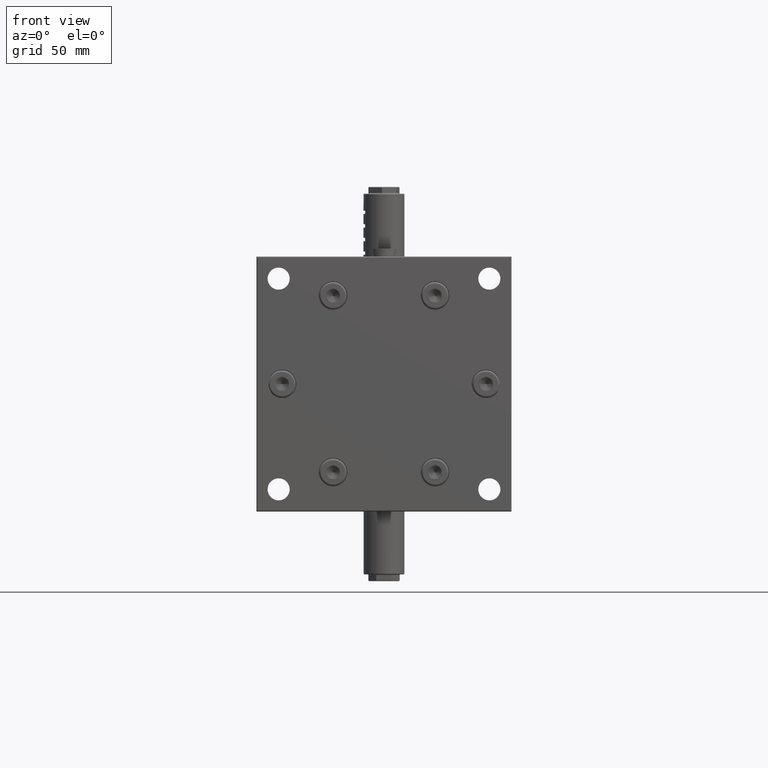
[diagram: clean part render]
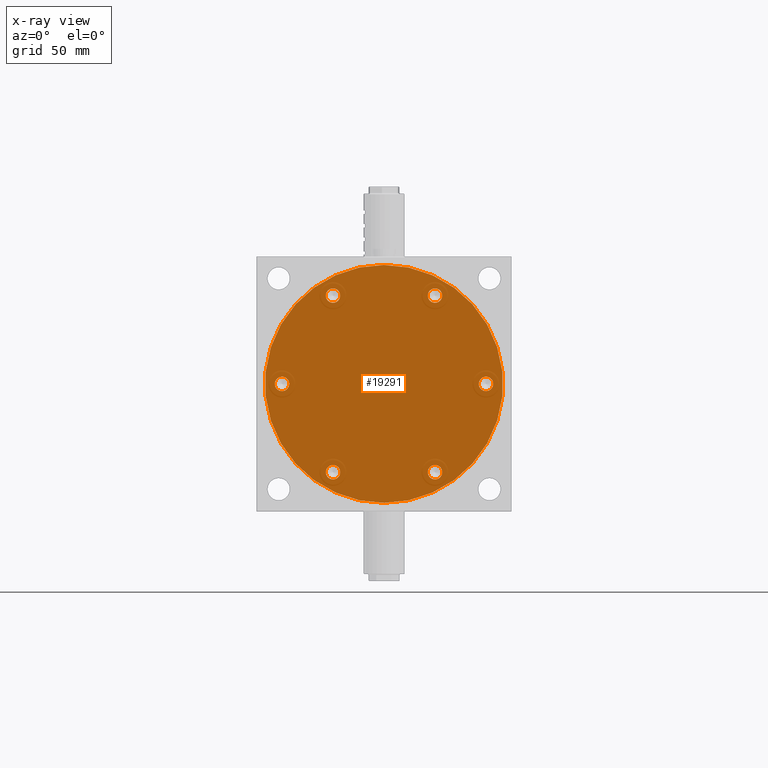
[diagram: x-ray — body ghosted, one internal face saturated and labeled with its STEP entity id]
A machine part, front view, then the same camera in x-ray: the body is ghosted and one INTERNAL B-rep face — a face not visible from any outside direction — is saturated and labeled: STEP entity #19291.
In plain terms, the highlighted planar face has unit normal (0, 1, 0).
Its self-contained STEP definition (entity closure, byte-faithful):
#264 = CARTESIAN_POINT ( 'NONE',  ( 60.00000000000000000, 310.0000000000000000, -4.250000000000000000 ) ) ;
#487 = DIRECTION ( 'NONE',  ( 0.0000000000000000000, 0.0000000000000000000, 1.000000000000000000 ) ) ;
#498 = EDGE_CURVE ( 'NONE', #26291, #34516, #12580, .T. ) ;
#1370 = EDGE_LOOP ( 'NONE', ( #5743, #25323 ) ) ;
#1411 = AXIS2_PLACEMENT_3D ( 'NONE', #41334, #21249, #20947 ) ;
#1434 = CIRCLE ( 'NONE', #24109, 70.00000000000000000 ) ;
#1503 = CARTESIAN_POINT ( 'NONE',  ( 30.00000000000000000, 310.0000000000000000, -47.71152422706629900 ) ) ;
#1547 = CIRCLE ( 'NONE', #33949, 4.249999999999996400 ) ;
#1964 = EDGE_CURVE ( 'NONE', #35588, #34383, #28973, .T. ) ;
#2272 = EDGE_LOOP ( 'NONE', ( #39514, #33018 ) ) ;
#2332 = DIRECTION ( 'NONE',  ( 0.0000000000000000000, 0.0000000000000000000, 1.000000000000000000 ) ) ;
#2371 = CARTESIAN_POINT ( 'NONE',  ( -30.00000000000000000, 310.0000000000000000, -47.71152422706629900 ) ) ;
#2447 = VERTEX_POINT ( 'NONE', #22483 ) ;
#2722 = DIRECTION ( 'NONE',  ( 0.0000000000000000000, 0.0000000000000000000, 1.000000000000000000 ) ) ;
#2865 = CARTESIAN_POINT ( 'NONE',  ( 0.0000000000000000000, 310.0000000000000000, 0.0000000000000000000 ) ) ;
#3125 = VERTEX_POINT ( 'NONE', #10687 ) ;
#3129 = ORIENTED_EDGE ( 'NONE', *, *, #32395, .F. ) ;
#3534 = ORIENTED_EDGE ( 'NONE', *, *, #28799, .F. ) ;
#4712 = VERTEX_POINT ( 'NONE', #8422 ) ;
#4930 = AXIS2_PLACEMENT_3D ( 'NONE', #29269, #43009, #6436 ) ;
#5570 = EDGE_LOOP ( 'NONE', ( #32735, #30900 ) ) ;
#5743 = ORIENTED_EDGE ( 'NONE', *, *, #11033, .F. ) ;
#5802 = DIRECTION ( 'NONE',  ( 0.0000000000000000000, 1.000000000000000000, 0.0000000000000000000 ) ) ;
#6116 = CARTESIAN_POINT ( 'NONE',  ( 30.00000000000000000, 310.0000000000000000, 56.21152422706629200 ) ) ;
#6378 = EDGE_LOOP ( 'NONE', ( #24806, #21898 ) ) ;
#6436 = DIRECTION ( 'NONE',  ( 0.0000000000000000000, 0.0000000000000000000, 1.000000000000000000 ) ) ;
#6525 = EDGE_CURVE ( 'NONE', #10558, #42319, #39149, .T. ) ;
#6609 = CARTESIAN_POINT ( 'NONE',  ( -30.00000000000000000, 310.0000000000000000, 51.96152422706629900 ) ) ;
#6961 = CIRCLE ( 'NONE', #1411, 70.00000000000000000 ) ;
#7321 = CIRCLE ( 'NONE', #42967, 4.249999999999996400 ) ;
#7984 = FACE_OUTER_BOUND ( 'NONE', #14158, .T. ) ;
#8157 = DIRECTION ( 'NONE',  ( -0.0000000000000000000, -1.000000000000000000, -0.0000000000000000000 ) ) ;
#8422 = CARTESIAN_POINT ( 'NONE',  ( 0.0000000000000000000, 310.0000000000000000, -70.00000000000000000 ) ) ;
#8695 = DIRECTION ( 'NONE',  ( 0.0000000000000000000, 1.000000000000000000, 0.0000000000000000000 ) ) ;
#8737 = DIRECTION ( 'NONE',  ( 0.0000000000000000000, 1.000000000000000000, 0.0000000000000000000 ) ) ;
#9410 = DIRECTION ( 'NONE',  ( 0.0000000000000000000, 1.000000000000000000, 0.0000000000000000000 ) ) ;
#9552 = AXIS2_PLACEMENT_3D ( 'NONE', #41103, #41993, #35408 ) ;
#10052 = FACE_BOUND ( 'NONE', #6378, .T. ) ;
#10558 = VERTEX_POINT ( 'NONE', #264 ) ;
#10593 = CARTESIAN_POINT ( 'NONE',  ( -60.00000000000000000, 310.0000000000000000, 4.250000000000003600 ) ) ;
#10687 = CARTESIAN_POINT ( 'NONE',  ( -60.00000000000000000, 310.0000000000000000, -4.249999999999996400 ) ) ;
#11033 = EDGE_CURVE ( 'NONE', #2447, #41405, #31587, .T. ) ;
#11088 = VERTEX_POINT ( 'NONE', #33697 ) ;
#12073 = EDGE_LOOP ( 'NONE', ( #37511, #12419 ) ) ;
#12250 = DIRECTION ( 'NONE',  ( 0.0000000000000000000, 0.0000000000000000000, 1.000000000000000000 ) ) ;
#12401 = DIRECTION ( 'NONE',  ( 0.0000000000000000000, 0.0000000000000000000, 1.000000000000000000 ) ) ;
#12415 = CARTESIAN_POINT ( 'NONE',  ( -30.00000000000000000, 310.0000000000000000, 51.96152422706629900 ) ) ;
#12419 = ORIENTED_EDGE ( 'NONE', *, *, #39138, .F. ) ;
#12554 = DIRECTION ( 'NONE',  ( 0.0000000000000000000, 1.000000000000000000, 0.0000000000000000000 ) ) ;
#12580 = CIRCLE ( 'NONE', #28700, 2.000000000000000000 ) ;
#12939 = CARTESIAN_POINT ( 'NONE',  ( 60.00000000000000000, 310.0000000000000000, 0.0000000000000000000 ) ) ;
#13551 = CARTESIAN_POINT ( 'NONE',  ( 30.00000000000000000, 310.0000000000000000, 47.71152422706629900 ) ) ;
#13690 = DIRECTION ( 'NONE',  ( 0.0000000000000000000, 1.000000000000000000, 0.0000000000000000000 ) ) ;
#13878 = AXIS2_PLACEMENT_3D ( 'NONE', #37580, #27646, #17535 ) ;
#13927 = ORIENTED_EDGE ( 'NONE', *, *, #41584, .T. ) ;
#14158 = EDGE_LOOP ( 'NONE', ( #40265, #3129 ) ) ;
#14188 = EDGE_CURVE ( 'NONE', #20908, #20515, #40818, .T. ) ;
#14599 = CIRCLE ( 'NONE', #20686, 4.249999999999996400 ) ;
#15375 = CARTESIAN_POINT ( 'NONE',  ( 60.00000000000000000, 310.0000000000000000, 0.0000000000000000000 ) ) ;
#15447 = AXIS2_PLACEMENT_3D ( 'NONE', #2865, #9410, #42667 ) ;
#15561 = CARTESIAN_POINT ( 'NONE',  ( 0.0000000000000000000, 310.0000000000000000, 2.000000000000000000 ) ) ;
#15814 = VERTEX_POINT ( 'NONE', #20579 ) ;
#16007 = PLANE ( 'NONE',  #15447 ) ;
#16159 = CARTESIAN_POINT ( 'NONE',  ( 30.00000000000000000, 310.0000000000000000, -51.96152422706629900 ) ) ;
#16276 = CIRCLE ( 'NONE', #43311, 4.250000000000000000 ) ;
#17448 = CARTESIAN_POINT ( 'NONE',  ( 60.00000000000000000, 310.0000000000000000, 4.250000000000000000 ) ) ;
#17535 = DIRECTION ( 'NONE',  ( 0.0000000000000000000, 0.0000000000000000000, 1.000000000000000000 ) ) ;
#18968 = FACE_BOUND ( 'NONE', #1370, .T. ) ;
#19291 = ADVANCED_FACE ( 'NONE', ( #39939, #29483, #31054, #18968, #43083, #10052, #36801, #7984 ), #16007, .T. ) ;
#20515 = VERTEX_POINT ( 'NONE', #39840 ) ;
#20579 = CARTESIAN_POINT ( 'NONE',  ( 30.00000000000000000, 310.0000000000000000, -56.21152422706629200 ) ) ;
#20686 = AXIS2_PLACEMENT_3D ( 'NONE', #12415, #12554, #42426 ) ;
#20908 = VERTEX_POINT ( 'NONE', #2371 ) ;
#20947 = DIRECTION ( 'NONE',  ( 0.0000000000000000000, 0.0000000000000000000, -1.000000000000000000 ) ) ;
#21249 = DIRECTION ( 'NONE',  ( 0.0000000000000000000, -1.000000000000000000, 0.0000000000000000000 ) ) ;
#21898 = ORIENTED_EDGE ( 'NONE', *, *, #39570, .F. ) ;
#21976 = CARTESIAN_POINT ( 'NONE',  ( 0.0000000000000000000, 310.0000000000000000, 0.0000000000000000000 ) ) ;
#22032 = DIRECTION ( 'NONE',  ( 0.0000000000000000000, 1.000000000000000000, 0.0000000000000000000 ) ) ;
#22388 = DIRECTION ( 'NONE',  ( 0.0000000000000000000, -1.000000000000000000, 0.0000000000000000000 ) ) ;
#22483 = CARTESIAN_POINT ( 'NONE',  ( -30.00000000000000000, 310.0000000000000000, 56.21152422706629200 ) ) ;
#22714 = AXIS2_PLACEMENT_3D ( 'NONE', #42237, #8695, #42363 ) ;
#22747 = CIRCLE ( 'NONE', #26479, 4.249999999999996400 ) ;
#23768 = CARTESIAN_POINT ( 'NONE',  ( -30.00000000000000000, 310.0000000000000000, -51.96152422706629900 ) ) ;
#24109 = AXIS2_PLACEMENT_3D ( 'NONE', #21976, #22388, #25493 ) ;
#24211 = EDGE_CURVE ( 'NONE', #32153, #3125, #26172, .T. ) ;
#24508 = DIRECTION ( 'NONE',  ( 0.0000000000000000000, 0.0000000000000000000, 1.000000000000000000 ) ) ;
#24806 = ORIENTED_EDGE ( 'NONE', *, *, #14188, .F. ) ;
#24912 = EDGE_LOOP ( 'NONE', ( #3534, #40415 ) ) ;
#24927 = EDGE_LOOP ( 'NONE', ( #26082, #13927 ) ) ;
#25323 = ORIENTED_EDGE ( 'NONE', *, *, #25370, .F. ) ;
#25370 = EDGE_CURVE ( 'NONE', #41405, #2447, #14599, .T. ) ;
#25493 = DIRECTION ( 'NONE',  ( 0.0000000000000000000, 0.0000000000000000000, -1.000000000000000000 ) ) ;
#26082 = ORIENTED_EDGE ( 'NONE', *, *, #498, .T. ) ;
#26172 = CIRCLE ( 'NONE', #4930, 4.250000000000000000 ) ;
#26291 = VERTEX_POINT ( 'NONE', #15561 ) ;
#26479 = AXIS2_PLACEMENT_3D ( 'NONE', #28793, #8737, #2332 ) ;
#26773 = DIRECTION ( 'NONE',  ( 0.0000000000000000000, 1.000000000000000000, 0.0000000000000000000 ) ) ;
#27646 = DIRECTION ( 'NONE',  ( 0.0000000000000000000, 1.000000000000000000, 0.0000000000000000000 ) ) ;
#28700 = AXIS2_PLACEMENT_3D ( 'NONE', #29768, #33136, #2722 ) ;
#28793 = CARTESIAN_POINT ( 'NONE',  ( 30.00000000000000000, 310.0000000000000000, -51.96152422706629900 ) ) ;
#28799 = EDGE_CURVE ( 'NONE', #41135, #15814, #22747, .T. ) ;
#28973 = CIRCLE ( 'NONE', #13878, 4.249999999999996400 ) ;
#29207 = DIRECTION ( 'NONE',  ( 0.0000000000000000000, 0.0000000000000000000, 1.000000000000000000 ) ) ;
#29269 = CARTESIAN_POINT ( 'NONE',  ( -60.00000000000000000, 310.0000000000000000, 3.469446951953615000E-015 ) ) ;
#29483 = FACE_BOUND ( 'NONE', #5570, .T. ) ;
#29768 = CARTESIAN_POINT ( 'NONE',  ( 0.0000000000000000000, 310.0000000000000000, 0.0000000000000000000 ) ) ;
#30382 = EDGE_CURVE ( 'NONE', #4712, #11088, #6961, .T. ) ;
#30900 = ORIENTED_EDGE ( 'NONE', *, *, #6525, .F. ) ;
#31054 = FACE_BOUND ( 'NONE', #12073, .T. ) ;
#31587 = CIRCLE ( 'NONE', #42616, 4.249999999999996400 ) ;
#32153 = VERTEX_POINT ( 'NONE', #10593 ) ;
#32395 = EDGE_CURVE ( 'NONE', #11088, #4712, #1434, .T. ) ;
#32735 = ORIENTED_EDGE ( 'NONE', *, *, #35422, .F. ) ;
#33018 = ORIENTED_EDGE ( 'NONE', *, *, #33286, .F. ) ;
#33136 = DIRECTION ( 'NONE',  ( -0.0000000000000000000, -1.000000000000000000, -0.0000000000000000000 ) ) ;
#33286 = EDGE_CURVE ( 'NONE', #3125, #32153, #40090, .T. ) ;
#33697 = CARTESIAN_POINT ( 'NONE',  ( 8.572527594031473000E-015, 310.0000000000000000, 70.00000000000000000 ) ) ;
#33949 = AXIS2_PLACEMENT_3D ( 'NONE', #38484, #22032, #12401 ) ;
#34232 = CARTESIAN_POINT ( 'NONE',  ( 2.449293598294706400E-016, 310.0000000000000000, -2.000000000000000000 ) ) ;
#34383 = VERTEX_POINT ( 'NONE', #13551 ) ;
#34516 = VERTEX_POINT ( 'NONE', #34232 ) ;
#35408 = DIRECTION ( 'NONE',  ( 0.0000000000000000000, 0.0000000000000000000, 1.000000000000000000 ) ) ;
#35422 = EDGE_CURVE ( 'NONE', #42319, #10558, #16276, .T. ) ;
#35588 = VERTEX_POINT ( 'NONE', #6116 ) ;
#36801 = FACE_BOUND ( 'NONE', #24912, .T. ) ;
#36841 = DIRECTION ( 'NONE',  ( 0.0000000000000000000, 0.0000000000000000000, 1.000000000000000000 ) ) ;
#37407 = AXIS2_PLACEMENT_3D ( 'NONE', #23768, #13690, #36841 ) ;
#37511 = ORIENTED_EDGE ( 'NONE', *, *, #1964, .F. ) ;
#37580 = CARTESIAN_POINT ( 'NONE',  ( 30.00000000000000000, 310.0000000000000000, 51.96152422706629900 ) ) ;
#37943 = EDGE_CURVE ( 'NONE', #15814, #41135, #7321, .T. ) ;
#38484 = CARTESIAN_POINT ( 'NONE',  ( 30.00000000000000000, 310.0000000000000000, 51.96152422706629900 ) ) ;
#39138 = EDGE_CURVE ( 'NONE', #34383, #35588, #1547, .T. ) ;
#39149 = CIRCLE ( 'NONE', #41928, 4.250000000000000000 ) ;
#39514 = ORIENTED_EDGE ( 'NONE', *, *, #24211, .F. ) ;
#39570 = EDGE_CURVE ( 'NONE', #20515, #20908, #41858, .T. ) ;
#39840 = CARTESIAN_POINT ( 'NONE',  ( -30.00000000000000000, 310.0000000000000000, -56.21152422706629200 ) ) ;
#39933 = CARTESIAN_POINT ( 'NONE',  ( -30.00000000000000000, 310.0000000000000000, 47.71152422706629900 ) ) ;
#39939 = FACE_BOUND ( 'NONE', #24927, .T. ) ;
#40090 = CIRCLE ( 'NONE', #9552, 4.250000000000000000 ) ;
#40265 = ORIENTED_EDGE ( 'NONE', *, *, #30382, .F. ) ;
#40415 = ORIENTED_EDGE ( 'NONE', *, *, #37943, .F. ) ;
#40818 = CIRCLE ( 'NONE', #22714, 4.249999999999996400 ) ;
#41103 = CARTESIAN_POINT ( 'NONE',  ( -60.00000000000000000, 310.0000000000000000, 3.469446951953615000E-015 ) ) ;
#41135 = VERTEX_POINT ( 'NONE', #1503 ) ;
#41334 = CARTESIAN_POINT ( 'NONE',  ( 0.0000000000000000000, 310.0000000000000000, 0.0000000000000000000 ) ) ;
#41405 = VERTEX_POINT ( 'NONE', #39933 ) ;
#41584 = EDGE_CURVE ( 'NONE', #34516, #26291, #42194, .T. ) ;
#41701 = CARTESIAN_POINT ( 'NONE',  ( 0.0000000000000000000, 310.0000000000000000, 0.0000000000000000000 ) ) ;
#41858 = CIRCLE ( 'NONE', #37407, 4.249999999999996400 ) ;
#41883 = DIRECTION ( 'NONE',  ( 0.0000000000000000000, 0.0000000000000000000, 1.000000000000000000 ) ) ;
#41928 = AXIS2_PLACEMENT_3D ( 'NONE', #12939, #5802, #29207 ) ;
#41980 = AXIS2_PLACEMENT_3D ( 'NONE', #41701, #8157, #24508 ) ;
#41993 = DIRECTION ( 'NONE',  ( 0.0000000000000000000, 1.000000000000000000, 0.0000000000000000000 ) ) ;
#42166 = DIRECTION ( 'NONE',  ( 0.0000000000000000000, 1.000000000000000000, 0.0000000000000000000 ) ) ;
#42194 = CIRCLE ( 'NONE', #41980, 2.000000000000000000 ) ;
#42237 = CARTESIAN_POINT ( 'NONE',  ( -30.00000000000000000, 310.0000000000000000, -51.96152422706629900 ) ) ;
#42319 = VERTEX_POINT ( 'NONE', #17448 ) ;
#42363 = DIRECTION ( 'NONE',  ( 0.0000000000000000000, 0.0000000000000000000, 1.000000000000000000 ) ) ;
#42426 = DIRECTION ( 'NONE',  ( 0.0000000000000000000, 0.0000000000000000000, 1.000000000000000000 ) ) ;
#42547 = DIRECTION ( 'NONE',  ( 0.0000000000000000000, 1.000000000000000000, 0.0000000000000000000 ) ) ;
#42616 = AXIS2_PLACEMENT_3D ( 'NONE', #6609, #26773, #487 ) ;
#42667 = DIRECTION ( 'NONE',  ( 0.0000000000000000000, 0.0000000000000000000, 1.000000000000000000 ) ) ;
#42967 = AXIS2_PLACEMENT_3D ( 'NONE', #16159, #42547, #12250 ) ;
#43009 = DIRECTION ( 'NONE',  ( 0.0000000000000000000, 1.000000000000000000, 0.0000000000000000000 ) ) ;
#43083 = FACE_BOUND ( 'NONE', #2272, .T. ) ;
#43311 = AXIS2_PLACEMENT_3D ( 'NONE', #15375, #42166, #41883 ) ;